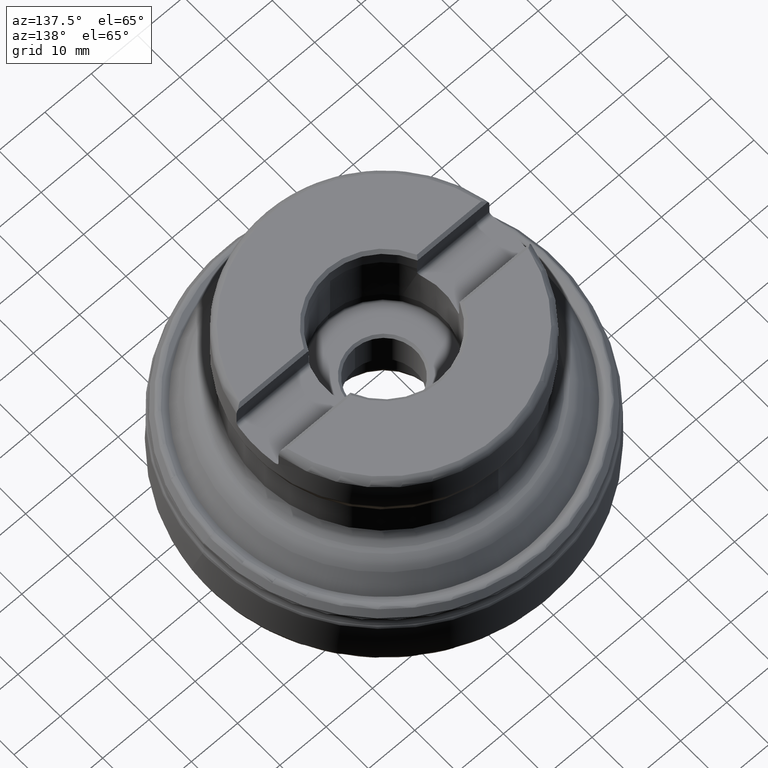
[diagram: clean part render]
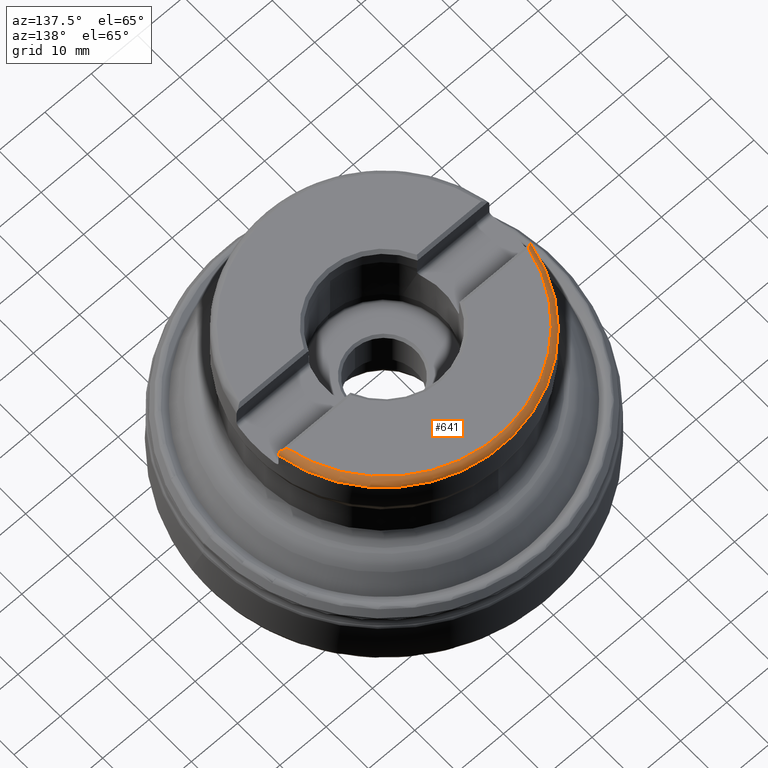
[diagram: same view with one face highlighted and labeled with its STEP entity id]
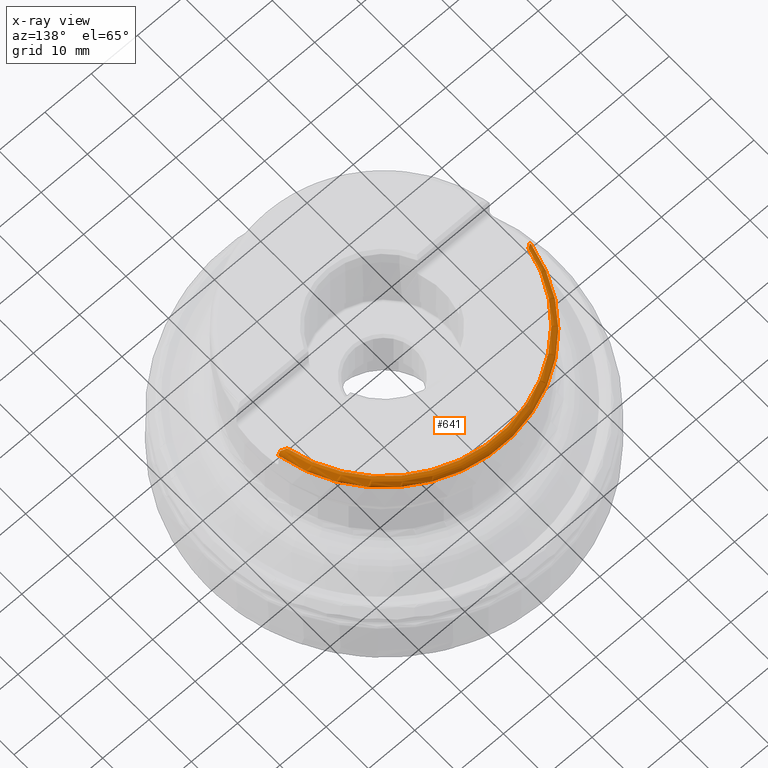
[diagram: x-ray of the same camera — body ghosted, the highlighted face saturated]
A machine part, auxiliary view. The second image highlights one B-rep face of the part: STEP entity #641.
The next image is the same camera in x-ray: the body ghosted, the highlighted face saturated — about 0% of this face is hidden behind the body in this view.
In plain terms, the highlighted toroidal blend (fillet) surface has major radius 25.8 mm and minor (blend) radius 2 mm.
Its self-contained STEP definition (entity closure, byte-faithful):
#641=ADVANCED_FACE('',(#975),#955,.T.);
#955=TOROIDAL_SURFACE('',#4611,25.8,2.);
#975=FACE_OUTER_BOUND('',#1223,.T.);
#1223=EDGE_LOOP('',(#1761,#1762,#1763,#1764,#1765,#1766));
#1603=CIRCLE('',#4609,26.6717797887081);
#1604=CIRCLE('',#4610,27.8);
#1761=ORIENTED_EDGE('',*,*,#3469,.T.);
#1762=ORIENTED_EDGE('',*,*,#3470,.T.);
#1763=ORIENTED_EDGE('',*,*,#3471,.T.);
#1764=ORIENTED_EDGE('',*,*,#3472,.T.);
#1765=ORIENTED_EDGE('',*,*,#3473,.T.);
#1766=ORIENTED_EDGE('',*,*,#3474,.F.);
#3065=VERTEX_POINT('',#5624);
#3066=VERTEX_POINT('',#5625);
#3067=VERTEX_POINT('',#5633);
#3068=VERTEX_POINT('',#5635);
#3069=VERTEX_POINT('',#5643);
#3070=VERTEX_POINT('',#5654);
#3469=EDGE_CURVE('',#3065,#3066,#4142,.T.);
#3470=EDGE_CURVE('',#3066,#3067,#4143,.T.);
#3471=EDGE_CURVE('',#3067,#3068,#1603,.T.);
#3472=EDGE_CURVE('',#3068,#3069,#4144,.T.);
#3473=EDGE_CURVE('',#3069,#3070,#4145,.T.);
#3474=EDGE_CURVE('',#3065,#3070,#1604,.T.);
#4142=B_SPLINE_CURVE_WITH_KNOTS('',3,(#5614,#5615,#5616,#5617,#5618,#5619,
#5620,#5621,#5622,#5623),.UNSPECIFIED.,.F.,.F.,(4,3,3,4),(0.,0.496366391203034,
0.803748092382904,1.),.UNSPECIFIED.);
#4143=B_SPLINE_CURVE_WITH_KNOTS('',3,(#5626,#5627,#5628,#5629,#5630,#5631,
#5632),.UNSPECIFIED.,.F.,.F.,(4,3,4),(0.,0.837754554308169,1.),
 .UNSPECIFIED.);
#4144=B_SPLINE_CURVE_WITH_KNOTS('',3,(#5636,#5637,#5638,#5639,#5640,#5641,
#5642),.UNSPECIFIED.,.F.,.F.,(4,3,4),(0.,0.843108759295357,1.),
 .UNSPECIFIED.);
#4145=B_SPLINE_CURVE_WITH_KNOTS('',3,(#5644,#5645,#5646,#5647,#5648,#5649,
#5650,#5651,#5652,#5653),.UNSPECIFIED.,.F.,.F.,(4,3,3,4),(0.,0.00355086894828348,
0.531781585821645,1.),.UNSPECIFIED.);
#4609=AXIS2_PLACEMENT_3D('',#5634,#4838,#4839);
#4610=AXIS2_PLACEMENT_3D('',#5655,#4840,#4841);
#4611=AXIS2_PLACEMENT_3D('',#5656,#4842,#4843);
#4838=DIRECTION('',(0.,-1.17145536458252E-15,-1.));
#4839=DIRECTION('',(0.,-1.,1.30079319019515E-15));
#4840=DIRECTION('',(0.,-1.17145536458252E-15,-1.));
#4841=DIRECTION('',(0.,1.,-1.24800250070274E-15));
#4842=DIRECTION('',(0.,-1.17145536458252E-15,-1.));
#4843=DIRECTION('',(0.,1.,-1.24800250070274E-15));
#5614=CARTESIAN_POINT('',(-27.3530395934346,4.96500000000005,42.65));
#5615=CARTESIAN_POINT('',(-27.3530395934346,4.96500000000005,42.8619693257852));
#5616=CARTESIAN_POINT('',(-27.3178695678813,4.96500000000005,43.0766298112396));
#5617=CARTESIAN_POINT('',(-27.2503724925809,4.96500000000005,43.2775654723347));
#5618=CARTESIAN_POINT('',(-27.2081873522731,4.96500000000005,43.4031486775094));
#5619=CARTESIAN_POINT('',(-27.1530399679243,4.96500000000005,43.5250690750317));
#5620=CARTESIAN_POINT('',(-27.0866616495757,4.96500000000005,43.6397191789913));
#5621=CARTESIAN_POINT('',(-27.0444460334364,4.96500000000005,43.7126349276802));
#5622=CARTESIAN_POINT('',(-26.9974981511336,4.96500000000005,43.7830043559091));
#5623=CARTESIAN_POINT('',(-26.9464056044586,4.96500000000005,43.85));
#5624=CARTESIAN_POINT('',(-27.3530395934346,4.96500000000005,42.65));
#5625=CARTESIAN_POINT('',(-26.9464056044586,4.96500000000005,43.85));
#5626=CARTESIAN_POINT('',(-26.9464056044586,4.96500000000005,43.85));
#5627=CARTESIAN_POINT('',(-26.7583634423833,5.16359143131583,44.0485914313158));
#5628=CARTESIAN_POINT('',(-26.5236458824023,5.34564686064071,44.2306468606407));
#5629=CARTESIAN_POINT('',(-26.2506779436443,5.48658208035585,44.3715820803558));
#5630=CARTESIAN_POINT('',(-26.1969522793122,5.51432100948229,44.3993210094822));
#5631=CARTESIAN_POINT('',(-26.1415902278621,5.5405514029359,44.4255514029358));
#5632=CARTESIAN_POINT('',(-26.0847582334462,5.56500000000005,44.45));
#5633=CARTESIAN_POINT('',(-26.0847582334462,5.56500000000005,44.45));
#5634=CARTESIAN_POINT('',(0.,5.20711909556932E-14,44.45));
#5635=CARTESIAN_POINT('',(26.0847582334462,5.56500000000005,44.45));
#5636=CARTESIAN_POINT('',(26.0847582334462,5.56500000000005,44.45));
#5637=CARTESIAN_POINT('',(26.3752333333916,5.44004030522383,44.3250403052238));
#5638=CARTESIAN_POINT('',(26.6290858604657,5.26754689622545,44.1525468962254));
#5639=CARTESIAN_POINT('',(26.8345417139795,5.07598290354636,43.9609829035463));
#5640=CARTESIAN_POINT('',(26.8733634658994,5.03978607744773,43.9247860774477));
#5641=CARTESIAN_POINT('',(26.9106620273024,5.00274881159351,43.8877488115935));
#5642=CARTESIAN_POINT('',(26.9464056044586,4.96500000000005,43.85));
#5643=CARTESIAN_POINT('',(26.9464056044586,4.96500000000005,43.85));
#5644=CARTESIAN_POINT('',(26.9464056044586,4.96500000000005,43.85));
#5645=CARTESIAN_POINT('',(26.9473404598275,4.96500000000005,43.8487741609756));
#5646=CARTESIAN_POINT('',(26.9482738996269,4.96500000000005,43.8475472411087));
#5647=CARTESIAN_POINT('',(26.9492059199661,4.96500000000005,43.8463192451959));
#5648=CARTESIAN_POINT('',(27.0858578230363,4.96500000000005,43.6662716953761));
#5649=CARTESIAN_POINT('',(27.1930609396988,4.96500000000005,43.4597818407239));
#5650=CARTESIAN_POINT('',(27.2612286328295,4.96500000000005,43.2442730742617));
#5651=CARTESIAN_POINT('',(27.3216782803847,4.96500000000005,43.0531645244577));
#5652=CARTESIAN_POINT('',(27.3530395934346,4.96500000000005,42.8504411078041));
#5653=CARTESIAN_POINT('',(27.3530395934346,4.96500000000005,42.65));
#5654=CARTESIAN_POINT('',(27.3530395934346,4.96500000000005,42.65));
#5655=CARTESIAN_POINT('',(0.,4.99625712994447E-14,42.65));
#5656=CARTESIAN_POINT('',(0.,4.99625712994447E-14,42.65));